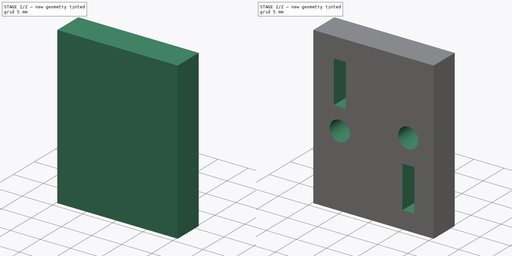
[diagram: build sequence overview — one tinted view per stage of 2, left to right]
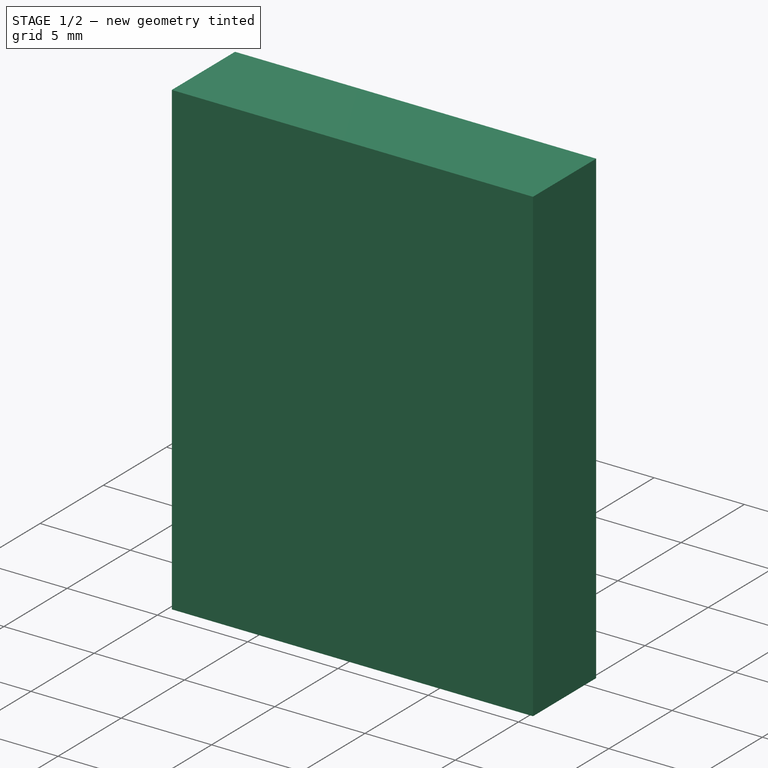
[diagram: stage 1 of 2 — iso view after this stage's code; geometry added in this stage tinted green]
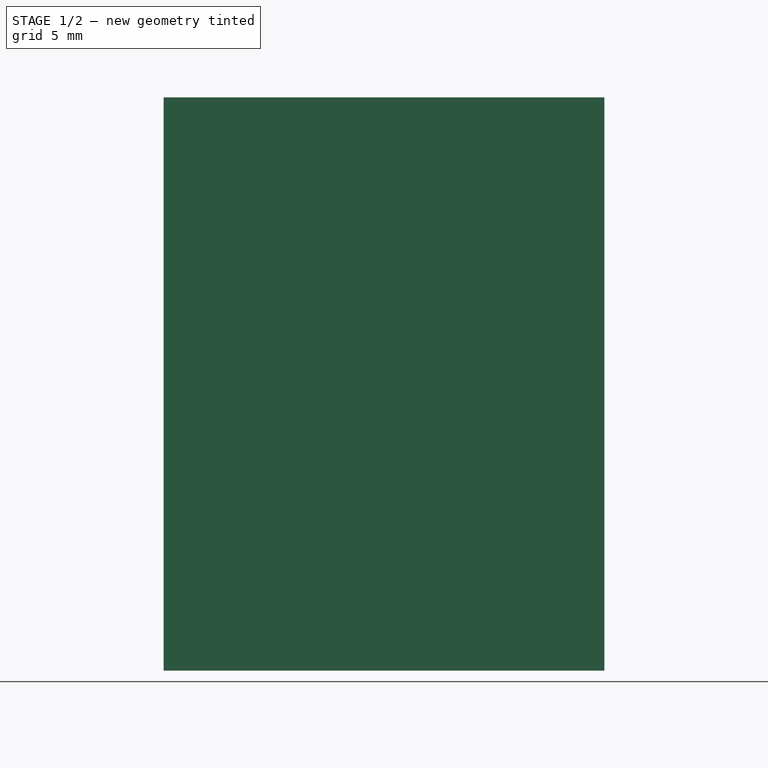
[diagram: stage 1 of 2 — front view after this stage's code; geometry added in this stage tinted green]
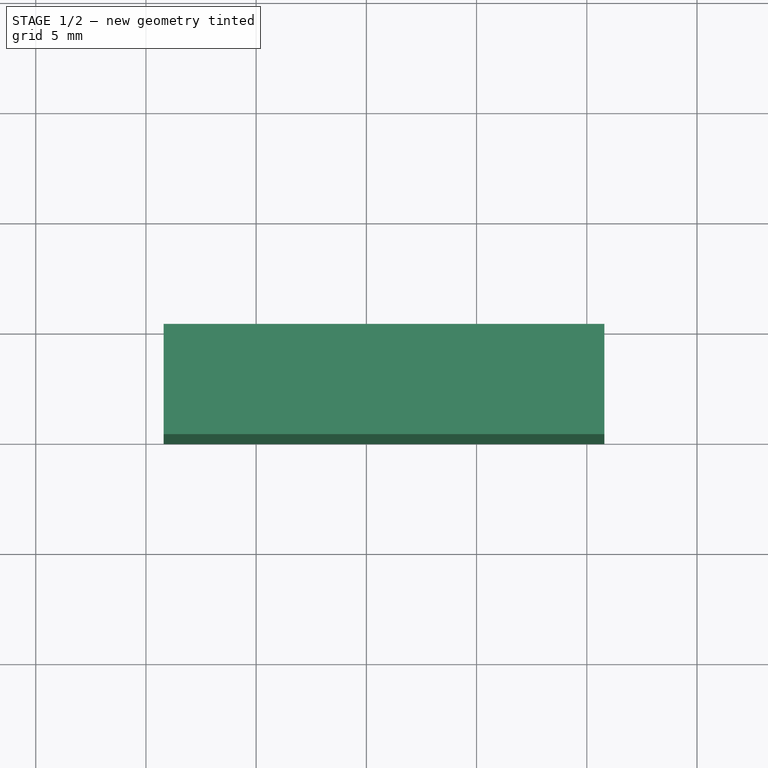
[diagram: stage 1 of 2 — top view after this stage's code; geometry added in this stage tinted green]
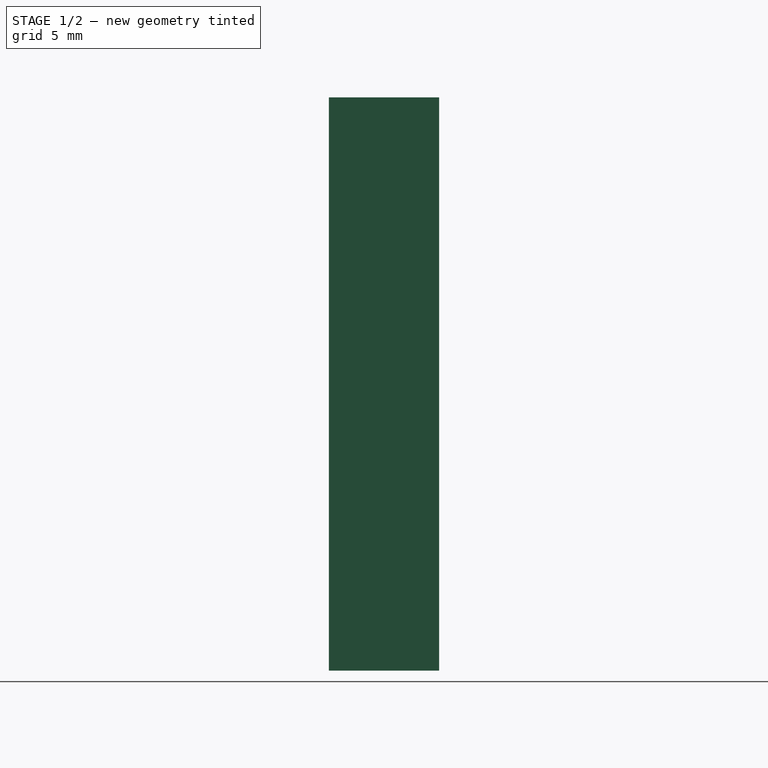
[diagram: stage 1 of 2 — right view after this stage's code; geometry added in this stage tinted green]
FCSTD DOCUMENT  (FreeCAD 0.16R6706 (Git))
Label: nz-belt-mount
License: All rights reserved
LicenseURL: http://en.wikipedia.org/wiki/All_rights_reserved
objects: Part::Box×1, Sketcher::SketchObject×1, PartDesign::Pocket×1
note: 4 computed .brp shape members not serialized (recipe doc carries the construction recipe); baked Part::Feature solids carry a one-line shape summary decoded from their .brp

FEATURE [Part::Box] Box002  label="belt mnt"
  Height = 26
  Length = 20
  Placement = pos=(20.8,-5,0) rot=(0,0,1;0rad)
  Width = 5
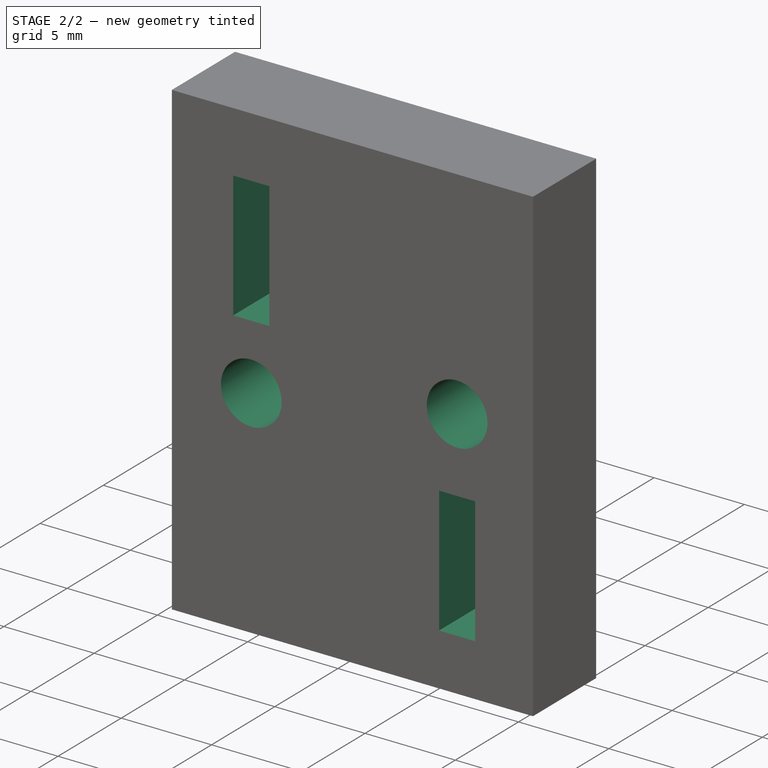
[diagram: stage 2 of 2 — iso view after this stage's code; geometry added in this stage tinted green]
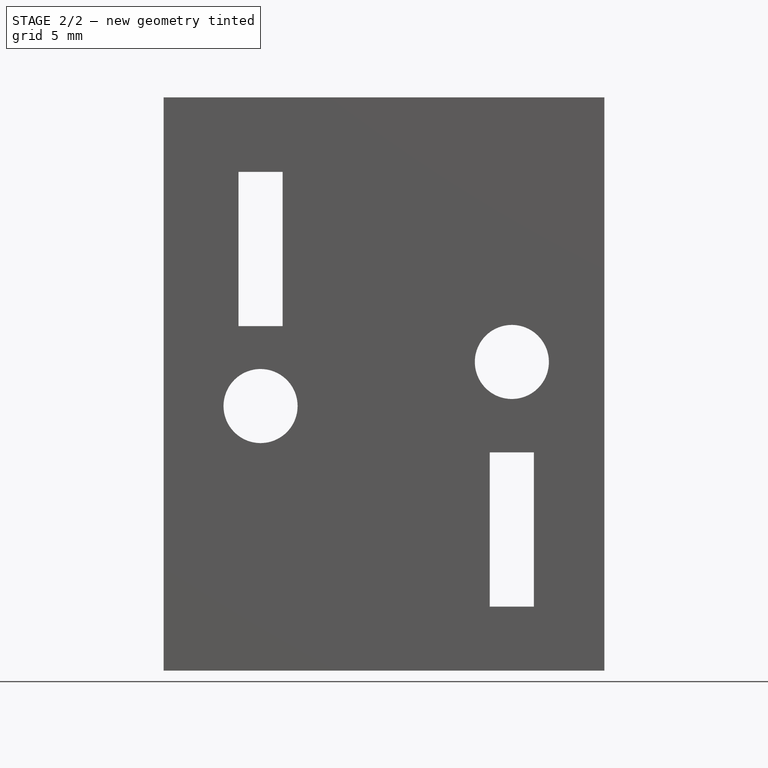
[diagram: stage 2 of 2 — front view after this stage's code; geometry added in this stage tinted green]
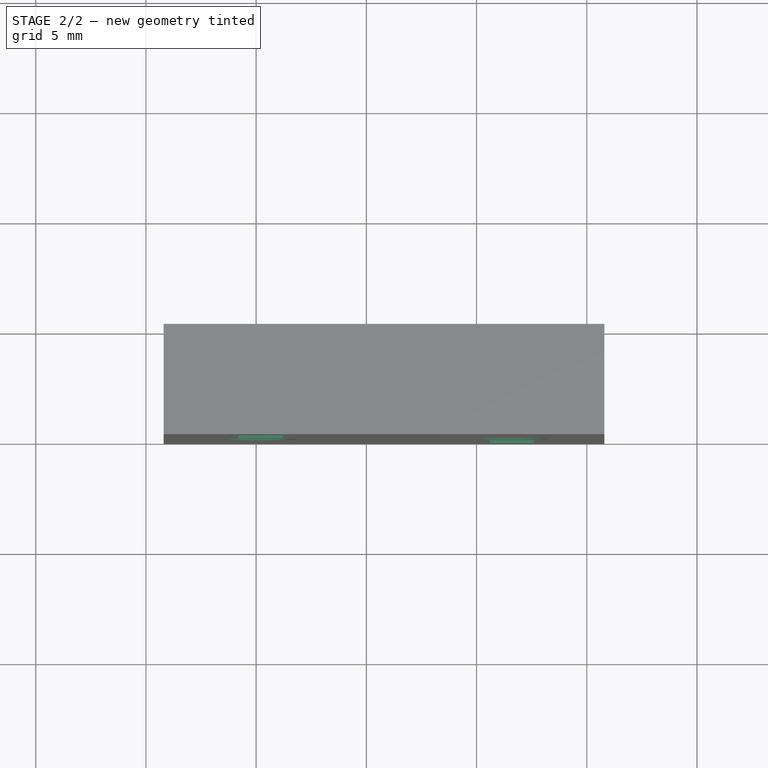
[diagram: stage 2 of 2 — top view after this stage's code; geometry added in this stage tinted green]
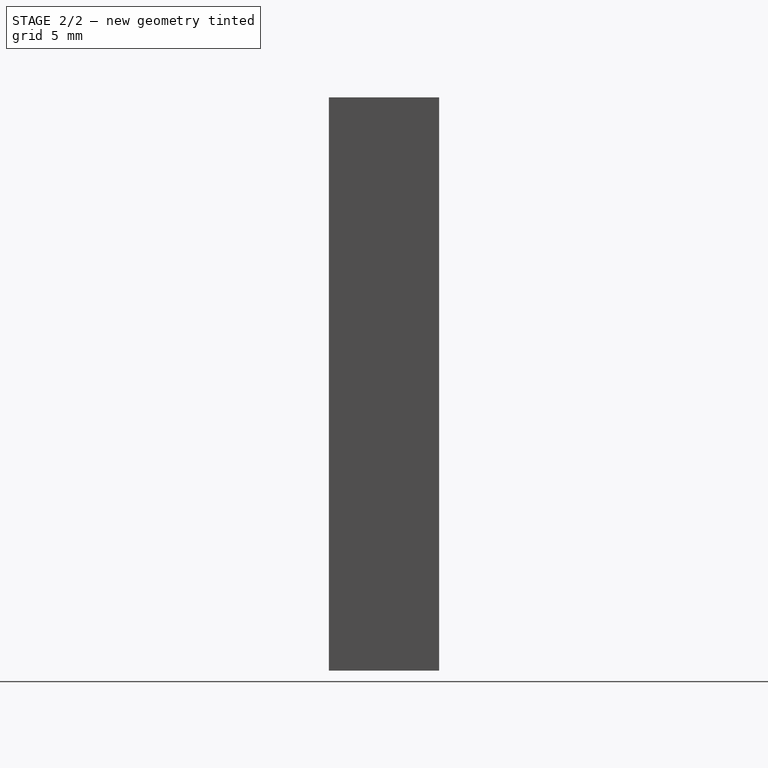
[diagram: stage 2 of 2 — right view after this stage's code; geometry added in this stage tinted green]
FEATURE [Sketcher::SketchObject] Sketch
  Placement = pos=(20.8,-5,0) rot=(1,0,0;1.5708rad)
  Support = -> Box002 [Face3]
  sketch-geometry (10):
    g0: Circle CenterX=4.4 CenterY=12 CenterZ=0 NormalX=0 NormalY=0 NormalZ=1 Radius=1.68
    g1: Circle CenterX=15.8 CenterY=14 CenterZ=0 NormalX=0 NormalY=0 NormalZ=1 Radius=1.68
    g2: LineSegment StartX=3.4 StartY=22.625 StartZ=0 EndX=5.4 EndY=22.625 EndZ=0
    g3: LineSegment StartX=5.4 StartY=22.625 StartZ=0 EndX=5.4 EndY=15.625 EndZ=0
    g4: LineSegment StartX=5.4 StartY=15.625 StartZ=0 EndX=3.4 EndY=15.625 EndZ=0
    g5: LineSegment StartX=3.4 StartY=15.625 StartZ=0 EndX=3.4 EndY=22.625 EndZ=0
    g6: LineSegment StartX=14.8 StartY=9.9 StartZ=0 EndX=16.8 EndY=9.9 EndZ=0
    g7: LineSegment StartX=16.8 StartY=9.9 StartZ=0 EndX=16.8 EndY=2.9 EndZ=0
    g8: LineSegment StartX=16.8 StartY=2.9 StartZ=0 EndX=14.8 EndY=2.9 EndZ=0
    g9: LineSegment StartX=14.8 StartY=2.9 StartZ=0 EndX=14.8 EndY=9.9 EndZ=0
  constraints (30):
    c: Radius(g0) = 1.68
    c: Equal(g0,g1)
    c: DistanceX(g-2,g1) = 15.8
    c: DistanceX(g-2,g0) = 4.4
    c: DistanceY(g-1,g1) = 14
    c: DistanceY(g-1,g0) = 12
    c: Coincident(g2,g3)
    c: Coincident(g3,g4)
    c: Coincident(g4,g5)
    c: Coincident(g5,g2)
    c: Horizontal(g2)
    c: Horizontal(g4)
    c: Vertical(g3)
    c: Vertical(g5)
    c: Coincident(g6,g7)
    c: Coincident(g7,g8)
    c: Coincident(g8,g9)
    c: Coincident(g9,g6)
    c: Horizontal(g6)
    c: Horizontal(g8)
    c: Vertical(g7)
    c: Vertical(g9)
    c: Distance(g2) = 2
    c: Equal(g6,g2)
    c: Distance(g3) = 7
    c: Equal(g3,g7)
    c: DistanceY(g-1,g8) = 2.9
    c: DistanceY(g-1,g4) = 15.625
    c: DistanceX(g-2,g8) = 14.8
    c: DistanceX(g-2,g4) = 3.4
FEATURE [PartDesign::Pocket] Pocket014
  Length = 5
  Placement = pos=(20.8,-5,0) rot=(0,0,1;0rad)
  Sketch = -> Sketch
  Type = 0
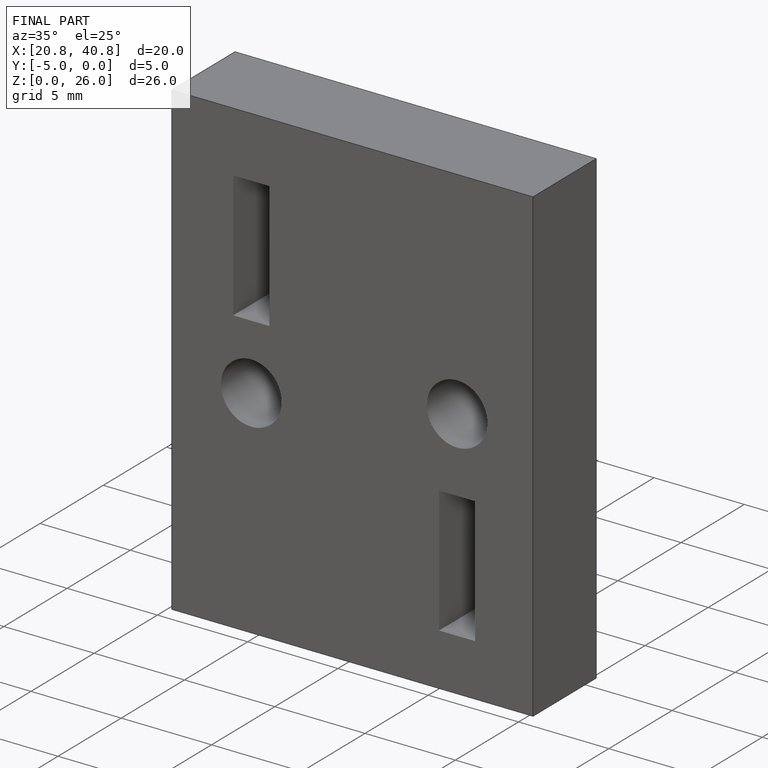
[diagram: finished part — iso view with bounding-box wireframe]
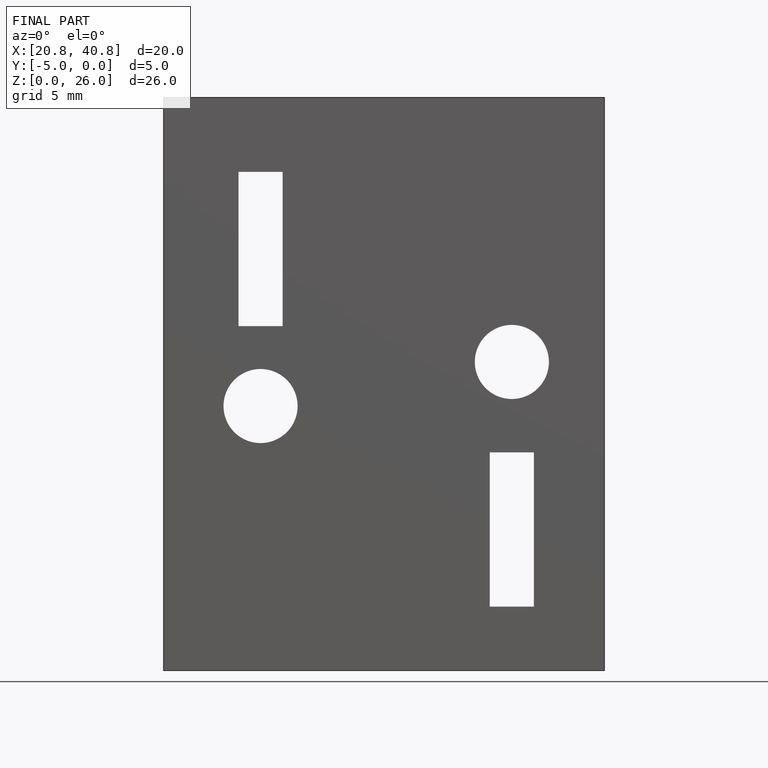
[diagram: finished part — front view with bounding-box wireframe]
